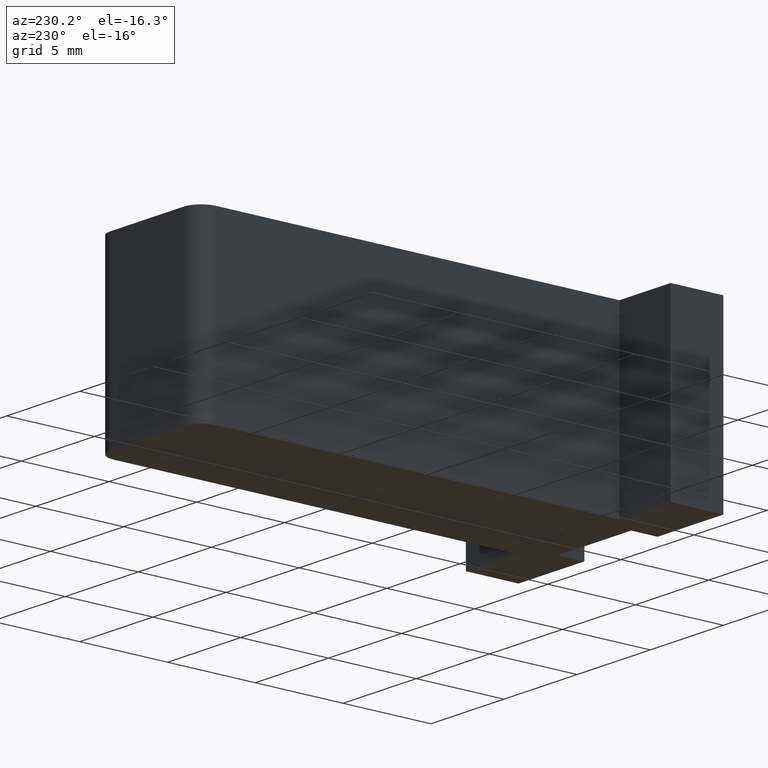
[diagram: clean part render]
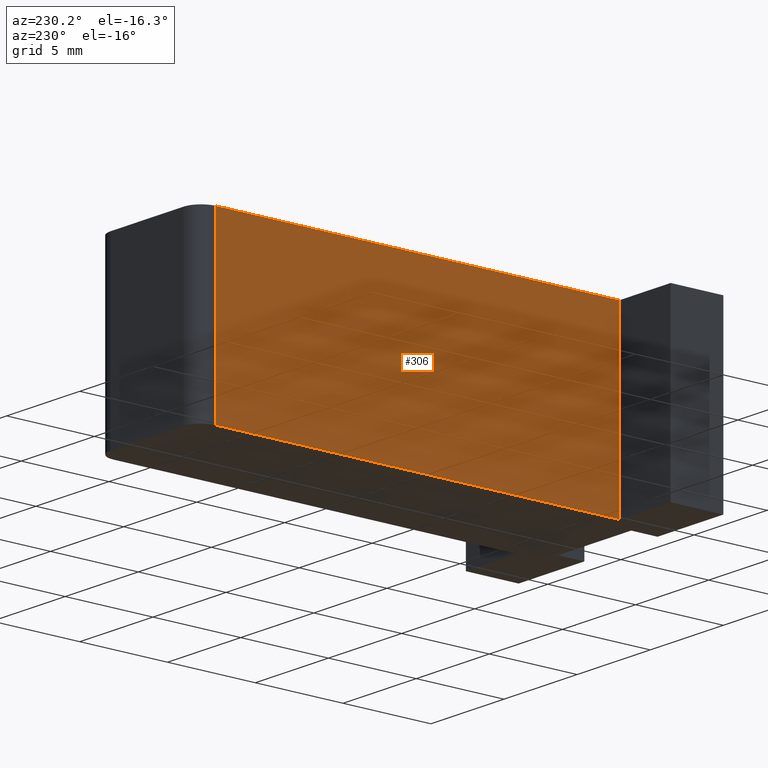
[diagram: same view with one face highlighted and labeled with its STEP entity id]
A machine part, auxiliary view. The second image highlights one B-rep face of the part: STEP entity #306.
In plain terms, the highlighted planar face has unit normal (-1, -0, 0).
Its self-contained STEP definition (entity closure, byte-faithful):
#26=FACE_OUTER_BOUND('',#42,.T.);
#42=EDGE_LOOP('',(#239,#240,#241,#242));
#63=LINE('',#458,#101);
#79=LINE('',#493,#117);
#80=LINE('',#496,#118);
#81=LINE('',#497,#119);
#101=VECTOR('',#370,10.);
#117=VECTOR('',#402,10.);
#118=VECTOR('',#405,10.);
#119=VECTOR('',#406,10.);
#139=VERTEX_POINT('',#455);
#140=VERTEX_POINT('',#457);
#151=VERTEX_POINT('',#491);
#152=VERTEX_POINT('',#495);
#167=EDGE_CURVE('',#140,#139,#63,.T.);
#185=EDGE_CURVE('',#151,#139,#79,.T.);
#186=EDGE_CURVE('',#151,#152,#80,.T.);
#187=EDGE_CURVE('',#152,#140,#81,.T.);
#239=ORIENTED_EDGE('',*,*,#186,.T.);
#240=ORIENTED_EDGE('',*,*,#187,.T.);
#241=ORIENTED_EDGE('',*,*,#167,.T.);
#242=ORIENTED_EDGE('',*,*,#185,.F.);
#292=PLANE('',#347);
#306=ADVANCED_FACE('',(#26),#292,.T.);
#347=AXIS2_PLACEMENT_3D('',#494,#403,#404);
#370=DIRECTION('',(3.13758680872327E-16,-1.,0.));
#402=DIRECTION('',(0.,0.,-1.));
#403=DIRECTION('center_axis',(-1.,-3.13758680872327E-16,0.));
#404=DIRECTION('ref_axis',(0.,0.,1.));
#405=DIRECTION('',(-3.13758680872327E-16,1.,0.));
#406=DIRECTION('',(0.,0.,-1.));
#455=CARTESIAN_POINT('',(-3.49999999999999,3.,-5.));
#457=CARTESIAN_POINT('',(-3.5,26.,-5.));
#458=CARTESIAN_POINT('',(-3.49999999999999,3.,-5.));
#491=CARTESIAN_POINT('',(-3.49999999999999,3.,5.));
#493=CARTESIAN_POINT('',(-3.49999999999999,3.,0.));
#494=CARTESIAN_POINT('Origin',(-3.49999999999999,3.,0.));
#495=CARTESIAN_POINT('',(-3.5,26.,5.));
#496=CARTESIAN_POINT('',(-3.49999999999999,3.,5.));
#497=CARTESIAN_POINT('',(-3.5,26.,0.));